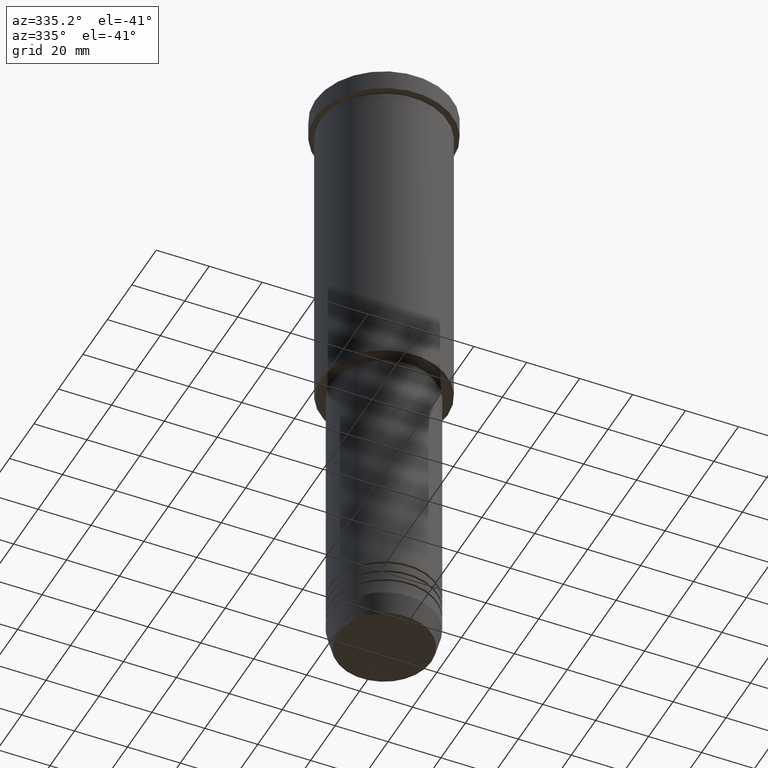
[diagram: clean part render]
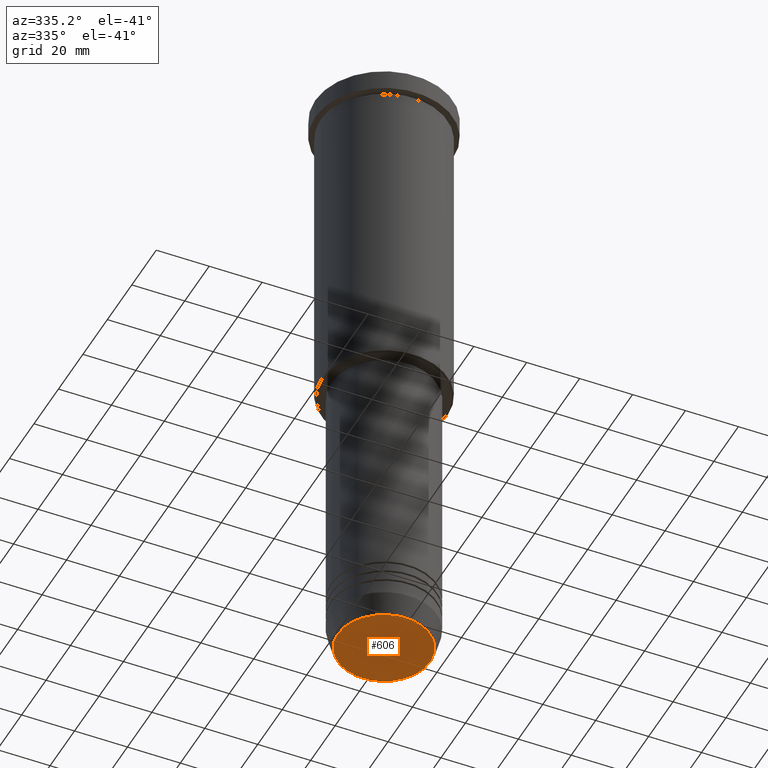
[diagram: same view with one face highlighted and labeled with its STEP entity id]
A machine part, auxiliary view. The second image highlights one B-rep face of the part: STEP entity #606.
In plain terms, the highlighted planar face has unit normal (0, -0, 1).
Its self-contained STEP definition (entity closure, byte-faithful):
#20 = ORIENTED_EDGE ( 'NONE', *, *, #1071, .T. ) ;
#35 = CIRCLE ( 'NONE', #681, 17.47274296656154036 ) ;
#62 = VERTEX_POINT ( 'NONE', #698 ) ;
#76 = AXIS2_PLACEMENT_3D ( 'NONE', #563, #850, #927 ) ;
#253 = DIRECTION ( 'NONE',  ( 0.000000000000000000, 0.000000000000000000, -1.000000000000000000 ) ) ;
#291 = VERTEX_POINT ( 'NONE', #420 ) ;
#307 = FACE_OUTER_BOUND ( 'NONE', #943, .T. ) ;
#308 = EDGE_CURVE ( 'NONE', #62, #291, #336, .T. ) ;
#336 = CIRCLE ( 'NONE', #658, 17.47274296656154036 ) ;
#420 = CARTESIAN_POINT ( 'NONE',  ( -17.47274296656154036, 2.169366823916868503E-15, -240.0000000000000000 ) ) ;
#445 = DIRECTION ( 'NONE',  ( 0.000000000000000000, 0.000000000000000000, -1.000000000000000000 ) ) ;
#563 = CARTESIAN_POINT ( 'NONE',  ( 0.000000000000000000, 0.000000000000000000, -240.0000000000000000 ) ) ;
#606 = ADVANCED_FACE ( 'NONE', ( #307 ), #944, .F. ) ;
#658 = AXIS2_PLACEMENT_3D ( 'NONE', #1157, #253, #704 ) ;
#681 = AXIS2_PLACEMENT_3D ( 'NONE', #891, #445, #711 ) ;
#698 = CARTESIAN_POINT ( 'NONE',  ( 17.47274296656154036, 0.000000000000000000, -240.0000000000000000 ) ) ;
#704 = DIRECTION ( 'NONE',  ( 1.000000000000000000, 0.000000000000000000, 0.000000000000000000 ) ) ;
#711 = DIRECTION ( 'NONE',  ( 1.000000000000000000, 0.000000000000000000, 0.000000000000000000 ) ) ;
#850 = DIRECTION ( 'NONE',  ( 0.000000000000000000, -0.000000000000000000, 1.000000000000000000 ) ) ;
#891 = CARTESIAN_POINT ( 'NONE',  ( 0.000000000000000000, 0.000000000000000000, -240.0000000000000000 ) ) ;
#927 = DIRECTION ( 'NONE',  ( 1.000000000000000000, 0.000000000000000000, 0.000000000000000000 ) ) ;
#943 = EDGE_LOOP ( 'NONE', ( #1047, #20 ) ) ;
#944 = PLANE ( 'NONE',  #76 ) ;
#1047 = ORIENTED_EDGE ( 'NONE', *, *, #308, .T. ) ;
#1071 = EDGE_CURVE ( 'NONE', #291, #62, #35, .T. ) ;
#1157 = CARTESIAN_POINT ( 'NONE',  ( 0.000000000000000000, 0.000000000000000000, -240.0000000000000000 ) ) ;